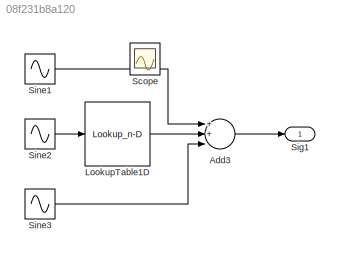
MODEL slx_08f231b8a120
KIND model
CONFIG AbsTol = auto
CONFIG FixedStep = auto
CONFIG MaxStep = 0.1
CONFIG MinStep = auto
CONFIG RelTol = 1e-3
CONFIG SampleTimeConstraint = Unconstrained
CONFIG Solver = ode45
CONFIG SolverMode = Auto
CONFIG SolverName = ode45
CONFIG StartTime = 0.0
CONFIG StopTime = 10
BLOCK [Sum] Add3
  InputSameDT = off
  Inputs = 3
  OutDataTypeStr = Inherit: Inherit via internal rule
  Ports = [3, 1]
  SaturateOnIntegerOverflow = off
BLOCK [Lookup_n-D] LookupTable1D
  BreakpointsForDimension1 = [-5:5]
  InternalRulePriority = Speed
  NumberOfTableDimensions = 1
  Ports = [1, 1]
  RndMeth = Simplest
  Table = tanh([-5:5])
BLOCK [Scope] Scope
  IOType = viewer
  Ports = []
  ScopeSpecificationString = Simulink.scopes.TimeScopeBlockCfg('CurrentConfiguration', extmgr.ConfigurationSet(extmgr.Configuration('Core','General UI',true),extmgr.Configuration('Core','Source UI',true),extmgr.Configuration('Sources','WiredSimulink',true),extmgr.Configuration('Visuals','Time Domain',true,'SerializedDisplays',{struct('MinYLimReal','-1.42801','MaxYLimReal','1.59379','YLabelReal','','MinYLimMag','0.00000','MaxY...<+1376ch>
BLOCK [Outport] Sig1
  IconDisplay = Port number
BLOCK [Sin] Sine1
  Amplitude = 0.1
  Frequency = 1.0472
  Ports = [0, 1]
  SampleTime = 0
BLOCK [Sin] Sine2
  Amplitude = 2
  Ports = [0, 1]
  SampleTime = 0
BLOCK [Sin] Sine3
  Amplitude = 0.3
  Frequency = 0.5236
  Ports = [0, 1]
  SampleTime = 0
LINE Add3:1 -> Sig1:1
LINE LookupTable1D:1 -> Add3:2
LINE Sine1:1 -> Add3:1
LINE Sine2:1 -> LookupTable1D:1
LINE Sine3:1 -> Add3:3
